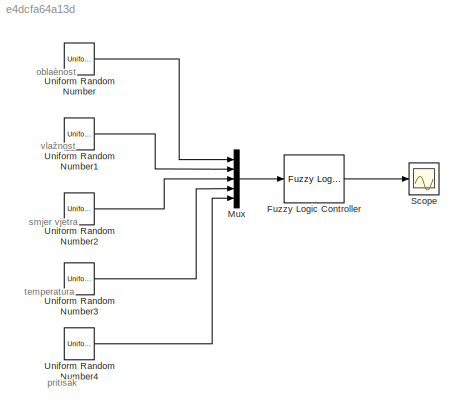
MODEL slx_e4dcfa64a13d
KIND model
CONFIG AbsTol = auto
CONFIG EnableMultiTasking = on
CONFIG FixedStep = auto
CONFIG MaxStep = auto
CONFIG MinStep = auto
CONFIG RelTol = 1e-3
CONFIG SampleTimeConstraint = Unconstrained
CONFIG Solver = ode45
CONFIG SolverName = ode45
CONFIG StartTime = 0.0
CONFIG StopTime = 15
BLOCK [Reference] Fuzzy Logic  Controller  REF=fuzblock/Fuzzy Logic   (lib defined in mdl_858b3b3e7478)
Controller
  Ports = [1, 1]
  SourceBlock = fuzblock/Fuzzy Logic \nController
  SourceProductBaseCode = FL
  SourceType = Fuzzy Inference System
BLOCK [Mux] Mux
  DisplayOption = bar
  Inputs = 5
  Ports = [5, 1]
BLOCK [Scope] Scope
  Floating = off
  NumInputPorts = 1
  Ports = [1]
  ScopeSpecificationString = C++SS(StrPVP('Location','[328, 195, 980, 579]'),StrPVP('Open','off'),MxPVP('AxesTitles',54,'struct(''axes1'',''%<SignalLabel>'')'),MxPVP('ScopeGraphics',57,'struct(''FigureColor'',''[0.5 0.5 0.5]'',''AxesColor'',''[0 0 0]'',''AxesTickColor'',''[1 1 1]'',''LineColors'',''[1 1 0;1 0 1;0 1 1;1 0 0;0 1 0;0 0 1]'',''LineStyles'',''-|-|-|-|-|-'',''LineWidths'',''[0.5 0.5 0.5 0.5 0.5 0.5]'',''MarkerStyle...<+239ch>
BLOCK [UniformRandomNumber] Uniform Random Number
  Maximum = 10
  Minimum = 0
  SampleTime = 0.1
BLOCK [UniformRandomNumber] Uniform Random Number1
  Maximum = 100
  Minimum = 0
  SampleTime = 0.1
BLOCK [UniformRandomNumber] Uniform Random Number2
  Maximum = 360
  Minimum = 0
  SampleTime = 0.1
BLOCK [UniformRandomNumber] Uniform Random Number3
  Maximum = 40
  Minimum = 0
  SampleTime = 0.1
BLOCK [UniformRandomNumber] Uniform Random Number4
  Maximum = 1030
  Minimum = 990
  SampleTime = 0.1
ANNOTATION (root): oblaènost
ANNOTATION (root): pritisak
ANNOTATION (root): smjer vjetra
ANNOTATION (root): temperatura
ANNOTATION (root): vlažnost
LINE Fuzzy Logic  Controller:1 -> Scope:1
LINE Mux:1 -> Fuzzy Logic  Controller:1
LINE Uniform Random Number1:1 -> Mux:2
LINE Uniform Random Number2:1 -> Mux:3
LINE Uniform Random Number3:1 -> Mux:4
LINE Uniform Random Number4:1 -> Mux:5
LINE Uniform Random Number:1 -> Mux:1
